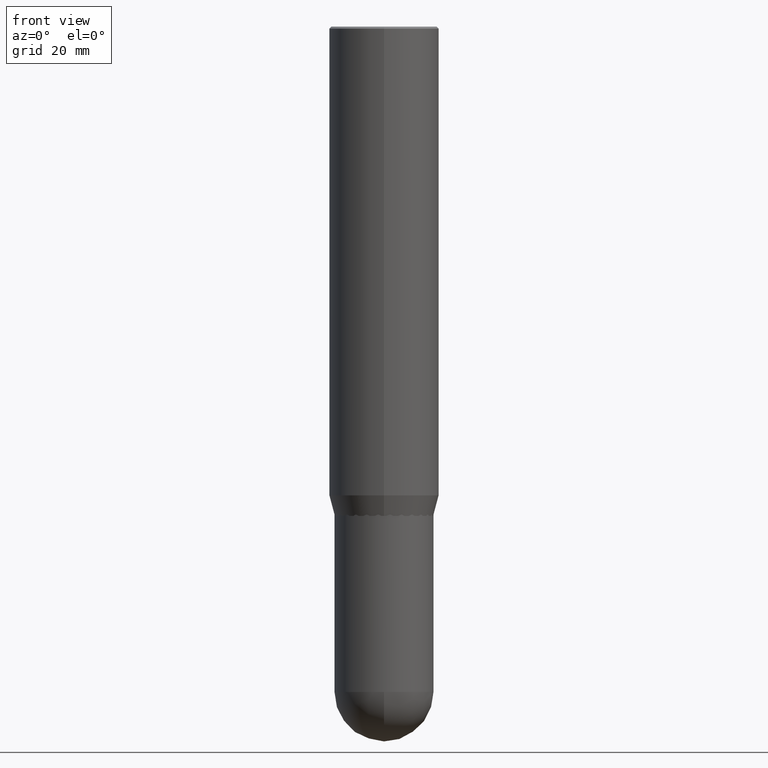
[diagram: clean part render]
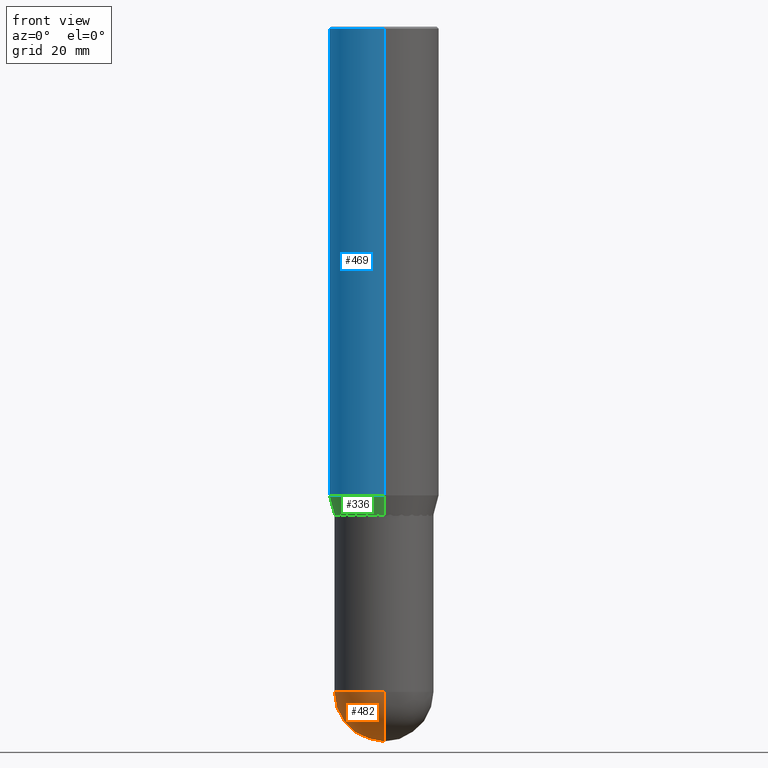
[diagram: same view with three faces highlighted in distinct colors, each labeled with its STEP entity id]
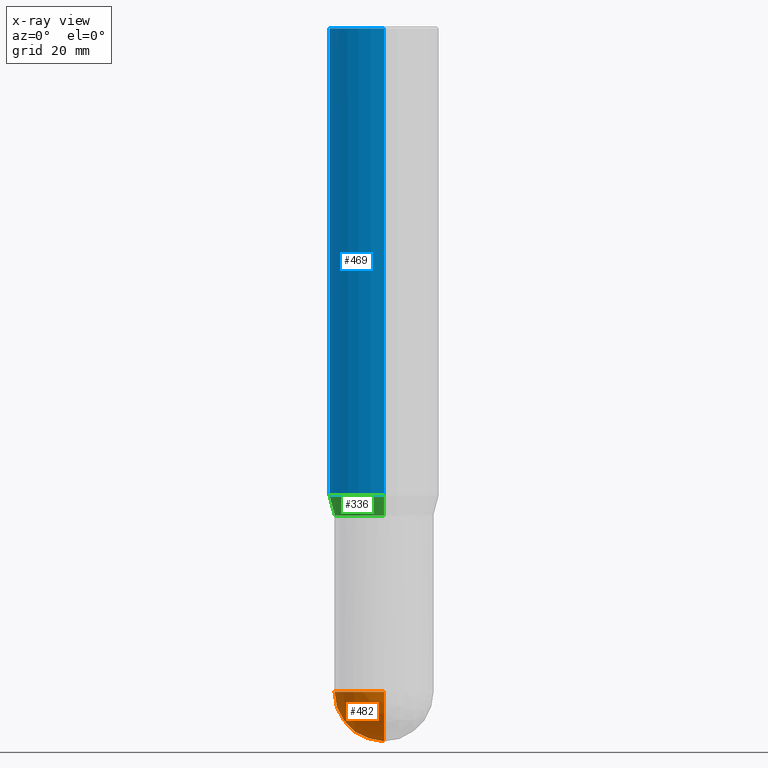
[diagram: x-ray of the same camera — body ghosted, the three highlighted faces saturated]
A machine part, front view with three faces highlighted in distinct colors.
The next image is the same camera in x-ray (body ghosted, the three faces saturated) — at least one of them is partly hidden behind the body in this view.
Their STEP definitions:

[orange] entity #482 — the highlighted spherical surface has radius 9.0005 mm.
#12 = VERTEX_POINT ( 'NONE', #26 ) ;
#20 = VERTEX_POINT ( 'NONE', #460 ) ;
#26 = CARTESIAN_POINT ( 'NONE',  ( -0.3543500000000000538, -1.164041050594345640E-14, -4.763749999999999929 ) ) ;
#37 = VERTEX_POINT ( 'NONE', #422 ) ;
#42 = EDGE_CURVE ( 'NONE', #20, #37, #311, .T. ) ;
#55 = ORIENTED_EDGE ( 'NONE', *, *, #167, .F. ) ;
#58 = CARTESIAN_POINT ( 'NONE',  ( -2.517808184165798640E-15, -0.3543500000000166517, -4.763749999999999041 ) ) ;
#63 = AXIS2_PLACEMENT_3D ( 'NONE', #177, #215, #386 ) ;
#77 = EDGE_CURVE ( 'NONE', #37, #12, #451, .T. ) ;
#87 = AXIS2_PLACEMENT_3D ( 'NONE', #371, #419, #139 ) ;
#101 = EDGE_CURVE ( 'NONE', #20, #358, #427, .T. ) ;
#131 = CARTESIAN_POINT ( 'NONE',  ( 1.164960202546444527E-28, -1.663254422791403592E-14, -4.763749999999999929 ) ) ;
#132 = DIRECTION ( 'NONE',  ( -2.445468806185136597E-29, 3.491481338843145583E-15, 1.000000000000000000 ) ) ;
#134 = CARTESIAN_POINT ( 'NONE',  ( 1.165296710481236520E-28, -1.662772524275939144E-14, -4.763749999999999929 ) ) ;
#139 = DIRECTION ( 'NONE',  ( -7.105427357601001070E-15, -1.000000000000000000, 0.000000000000000000 ) ) ;
#142 = DIRECTION ( 'NONE',  ( 1.000000000000000000, -6.982962677686270655E-15, 0.000000000000000000 ) ) ;
#149 = CIRCLE ( 'NONE', #495, 0.3543500000000000538 ) ;
#167 = EDGE_CURVE ( 'NONE', #12, #358, #149, .T. ) ;
#177 = CARTESIAN_POINT ( 'NONE',  ( 1.165296710481236520E-28, -1.662772524275939144E-14, -4.763749999999999929 ) ) ;
#182 = FACE_OUTER_BOUND ( 'NONE', #324, .T. ) ;
#185 = ORIENTED_EDGE ( 'NONE', *, *, #101, .T. ) ;
#212 = DIRECTION ( 'NONE',  ( -2.445468806185136597E-29, 3.491481338843145583E-15, 1.000000000000000000 ) ) ;
#215 = DIRECTION ( 'NONE',  ( -1.000000000000000000, 6.982962677686265133E-15, -4.883557194083112340E-29 ) ) ;
#235 = CARTESIAN_POINT ( 'NONE',  ( 1.164960202546444527E-28, -1.663254422791403592E-14, -4.763749999999999929 ) ) ;
#247 = DIRECTION ( 'NONE',  ( 1.000000000000000000, -6.982962677686265922E-15, 4.883557194083112340E-29 ) ) ;
#264 = SPHERICAL_SURFACE ( 'NONE', #63, 0.3543499999999999983 ) ;
#311 = CIRCLE ( 'NONE', #408, 0.3543499999999999983 ) ;
#313 = ORIENTED_EDGE ( 'NONE', *, *, #77, .F. ) ;
#324 = EDGE_LOOP ( 'NONE', ( #447, #185, #55, #313 ) ) ;
#358 = VERTEX_POINT ( 'NONE', #58 ) ;
#371 = CARTESIAN_POINT ( 'NONE',  ( 1.165296710481236520E-28, -1.662772524275939144E-14, -4.763749999999999929 ) ) ;
#379 = DIRECTION ( 'NONE',  ( 6.982962677686265922E-15, 1.000000000000000000, 0.000000000000000000 ) ) ;
#386 = DIRECTION ( 'NONE',  ( 6.982962677686265133E-15, 1.000000000000000000, -3.083784951222534905E-15 ) ) ;
#403 = DIRECTION ( 'NONE',  ( 1.000000000000000000, -6.982962677686270655E-15, 0.000000000000000000 ) ) ;
#408 = AXIS2_PLACEMENT_3D ( 'NONE', #134, #247, #379 ) ;
#419 = DIRECTION ( 'NONE',  ( -1.000000000000000000, 7.105427357601001070E-15, -4.926315508542082329E-29 ) ) ;
#422 = CARTESIAN_POINT ( 'NONE',  ( 2.474412824838244657E-15, 0.3543499999999834005, -4.763750000000001705 ) ) ;
#427 = CIRCLE ( 'NONE', #87, 0.3543499999999999983 ) ;
#447 = ORIENTED_EDGE ( 'NONE', *, *, #42, .F. ) ;
#451 = CIRCLE ( 'NONE', #453, 0.3543500000000000538 ) ;
#453 = AXIS2_PLACEMENT_3D ( 'NONE', #131, #212, #142 ) ;
#460 = CARTESIAN_POINT ( 'NONE',  ( 1.253467038501260508E-28, -1.784323397551456639E-14, -5.118100000000000094 ) ) ;
#482 = ADVANCED_FACE ( 'NONE', ( #182 ), #264, .T. ) ;
#495 = AXIS2_PLACEMENT_3D ( 'NONE', #235, #132, #403 ) ;

[blue] entity #469 — the highlighted cylindrical surface (partial cylindrical patch) has radius 10 mm, axis along (-0, 0, 1).
#5 = CIRCLE ( 'NONE', #271, 0.3937000000000000499 ) ;
#27 = CARTESIAN_POINT ( 'NONE',  ( 2.797406750687513998E-15, 0.3937000000000000499, -1.373947427993522467E-15 ) ) ;
#45 = EDGE_CURVE ( 'NONE', #454, #69, #415, .T. ) ;
#53 = CARTESIAN_POINT ( 'NONE',  ( 8.211451607026808771E-29, -1.171273187127617517E-14, -3.356243800722170434 ) ) ;
#64 = ORIENTED_EDGE ( 'NONE', *, *, #387, .T. ) ;
#69 = VERTEX_POINT ( 'NONE', #464 ) ;
#70 = CARTESIAN_POINT ( 'NONE',  ( -2.749192406205000781E-15, -0.3937000000000117628, -3.356243800722169546 ) ) ;
#72 = CIRCLE ( 'NONE', #196, 0.3937000000000000499 ) ;
#91 = VERTEX_POINT ( 'NONE', #105 ) ;
#94 = DIRECTION ( 'NONE',  ( -2.446619523069192094E-29, 3.489833446770440452E-15, 1.000000000000000000 ) ) ;
#102 = DIRECTION ( 'NONE',  ( -2.446619523069192094E-29, 3.489833446770440452E-15, 1.000000000000000000 ) ) ;
#105 = CARTESIAN_POINT ( 'NONE',  ( -2.749192406205082428E-15, -0.3937000000000001054, -0.01499999999999866371 ) ) ;
#121 = CARTESIAN_POINT ( 'NONE',  ( 0.000000000000000000, 0.000000000000000000, 0.000000000000000000 ) ) ;
#127 = CARTESIAN_POINT ( 'NONE',  ( 3.669929284603797792E-31, -5.234750170155674212E-17, -0.01500000000000003934 ) ) ;
#141 = ORIENTED_EDGE ( 'NONE', *, *, #45, .F. ) ;
#154 = VECTOR ( 'NONE', #309, 39.37007874015748143 ) ;
#159 = CARTESIAN_POINT ( 'NONE',  ( 2.797406750687596039E-15, 0.3936999999999882816, -3.356243800722171766 ) ) ;
#160 = EDGE_CURVE ( 'NONE', #69, #91, #72, .T. ) ;
#194 = CARTESIAN_POINT ( 'NONE',  ( -2.749192406205082822E-15, -0.3937000000000000499, 1.373947427993522467E-15 ) ) ;
#196 = AXIS2_PLACEMENT_3D ( 'NONE', #127, #94, #286 ) ;
#231 = EDGE_CURVE ( 'NONE', #454, #321, #5, .T. ) ;
#257 = ORIENTED_EDGE ( 'NONE', *, *, #160, .F. ) ;
#271 = AXIS2_PLACEMENT_3D ( 'NONE', #53, #287, #442 ) ;
#286 = DIRECTION ( 'NONE',  ( -6.982962677686265133E-15, -1.000000000000000000, 3.491137977679279424E-15 ) ) ;
#287 = DIRECTION ( 'NONE',  ( -2.446619523069192094E-29, 3.489833446770440452E-15, 1.000000000000000000 ) ) ;
#302 = EDGE_LOOP ( 'NONE', ( #141, #382, #64, #257 ) ) ;
#309 = DIRECTION ( 'NONE',  ( -2.446619523069192094E-29, 3.489833446770440452E-15, 1.000000000000000000 ) ) ;
#314 = FACE_OUTER_BOUND ( 'NONE', #302, .T. ) ;
#321 = VERTEX_POINT ( 'NONE', #70 ) ;
#362 = DIRECTION ( 'NONE',  ( -2.446619523069192094E-29, 3.489833446770440452E-15, 1.000000000000000000 ) ) ;
#366 = DIRECTION ( 'NONE',  ( -6.982962677686265133E-15, -1.000000000000000000, 3.489833446770440057E-15 ) ) ;
#382 = ORIENTED_EDGE ( 'NONE', *, *, #231, .T. ) ;
#387 = EDGE_CURVE ( 'NONE', #321, #91, #508, .T. ) ;
#415 = LINE ( 'NONE', #27, #431 ) ;
#431 = VECTOR ( 'NONE', #102, 39.37007874015748143 ) ;
#442 = DIRECTION ( 'NONE',  ( -6.982962677686265133E-15, -1.000000000000000000, 4.163344669033674845E-15 ) ) ;
#454 = VERTEX_POINT ( 'NONE', #159 ) ;
#464 = CARTESIAN_POINT ( 'NONE',  ( 2.797406750687596039E-15, 0.3936999999999998834, -0.01500000000000141324 ) ) ;
#469 = ADVANCED_FACE ( 'NONE', ( #314 ), #477, .T. ) ;
#477 = CYLINDRICAL_SURFACE ( 'NONE', #485, 0.3937000000000000499 ) ;
#485 = AXIS2_PLACEMENT_3D ( 'NONE', #121, #362, #366 ) ;
#508 = LINE ( 'NONE', #194, #154 ) ;

[green] entity #336 — the highlighted conical surface has half-angle 15 deg.
#3 = CARTESIAN_POINT ( 'NONE',  ( -2.474412824838044286E-15, -0.3543500000000124883, -3.503099999999998992 ) ) ;
#4 = EDGE_CURVE ( 'NONE', #173, #454, #297, .T. ) ;
#5 = CIRCLE ( 'NONE', #271, 0.3937000000000000499 ) ;
#43 = LINE ( 'NONE', #3, #73 ) ;
#44 = ORIENTED_EDGE ( 'NONE', *, *, #231, .F. ) ;
#53 = CARTESIAN_POINT ( 'NONE',  ( 8.211451607026808771E-29, -1.171273187127617517E-14, -3.356243800722170434 ) ) ;
#70 = CARTESIAN_POINT ( 'NONE',  ( -2.749192406205000781E-15, -0.3937000000000117628, -3.356243800722169546 ) ) ;
#73 = VECTOR ( 'NONE', #82, 39.37007874015748854 ) ;
#81 = VECTOR ( 'NONE', #344, 39.37007874015748143 ) ;
#82 = DIRECTION ( 'NONE',  ( -1.807323732225381021E-15, -0.2588190451025254579, 0.9659258262890669799 ) ) ;
#125 = CARTESIAN_POINT ( 'NONE',  ( 2.657607467426799497E-15, 0.3543499999999880634, -3.503100000000001213 ) ) ;
#137 = CONICAL_SURFACE ( 'NONE', #479, 0.3543500000000002759, 0.2617993877991577900 ) ;
#151 = FACE_OUTER_BOUND ( 'NONE', #417, .T. ) ;
#159 = CARTESIAN_POINT ( 'NONE',  ( 2.797406750687596039E-15, 0.3936999999999882816, -3.356243800722171766 ) ) ;
#173 = VERTEX_POINT ( 'NONE', #125 ) ;
#183 = ORIENTED_EDGE ( 'NONE', *, *, #510, .T. ) ;
#199 = ORIENTED_EDGE ( 'NONE', *, *, #391, .T. ) ;
#203 = CIRCLE ( 'NONE', #463, 0.3543500000000002759 ) ;
#209 = VERTEX_POINT ( 'NONE', #483 ) ;
#210 = DIRECTION ( 'NONE',  ( -6.982962677686265922E-15, -1.000000000000000000, 3.083784951222532539E-15 ) ) ;
#231 = EDGE_CURVE ( 'NONE', #454, #321, #5, .T. ) ;
#246 = ORIENTED_EDGE ( 'NONE', *, *, #4, .F. ) ;
#251 = DIRECTION ( 'NONE',  ( -6.982962677686265922E-15, -1.000000000000000000, 3.083784951222532539E-15 ) ) ;
#271 = AXIS2_PLACEMENT_3D ( 'NONE', #53, #287, #442 ) ;
#287 = DIRECTION ( 'NONE',  ( -2.446619523069192094E-29, 3.489833446770440452E-15, 1.000000000000000000 ) ) ;
#297 = LINE ( 'NONE', #347, #81 ) ;
#298 = CARTESIAN_POINT ( 'NONE',  ( 8.570752851263687408E-29, -1.222523554738153069E-14, -3.503100000000000325 ) ) ;
#321 = VERTEX_POINT ( 'NONE', #70 ) ;
#333 = DIRECTION ( 'NONE',  ( -2.446619523069192094E-29, 3.489833446770440452E-15, 1.000000000000000000 ) ) ;
#336 = ADVANCED_FACE ( 'NONE', ( #151 ), #137, .T. ) ;
#344 = DIRECTION ( 'NONE',  ( 1.839019923739651986E-15, 0.2588190451025322303, 0.9659258262890650926 ) ) ;
#347 = CARTESIAN_POINT ( 'NONE',  ( 2.517808184166002560E-15, 0.3543499999999880634, -3.503100000000001213 ) ) ;
#391 = EDGE_CURVE ( 'NONE', #209, #321, #43, .T. ) ;
#417 = EDGE_LOOP ( 'NONE', ( #246, #183, #199, #44 ) ) ;
#421 = DIRECTION ( 'NONE',  ( -2.446619523069192094E-29, 3.489833446770440452E-15, 1.000000000000000000 ) ) ;
#423 = CARTESIAN_POINT ( 'NONE',  ( 8.570752851263687408E-29, -1.222523554738153069E-14, -3.503100000000000325 ) ) ;
#442 = DIRECTION ( 'NONE',  ( -6.982962677686265133E-15, -1.000000000000000000, 4.163344669033674845E-15 ) ) ;
#454 = VERTEX_POINT ( 'NONE', #159 ) ;
#463 = AXIS2_PLACEMENT_3D ( 'NONE', #423, #333, #251 ) ;
#479 = AXIS2_PLACEMENT_3D ( 'NONE', #298, #421, #210 ) ;
#483 = CARTESIAN_POINT ( 'NONE',  ( -2.474412824838044286E-15, -0.3543500000000124883, -3.503099999999998992 ) ) ;
#510 = EDGE_CURVE ( 'NONE', #173, #209, #203, .T. ) ;